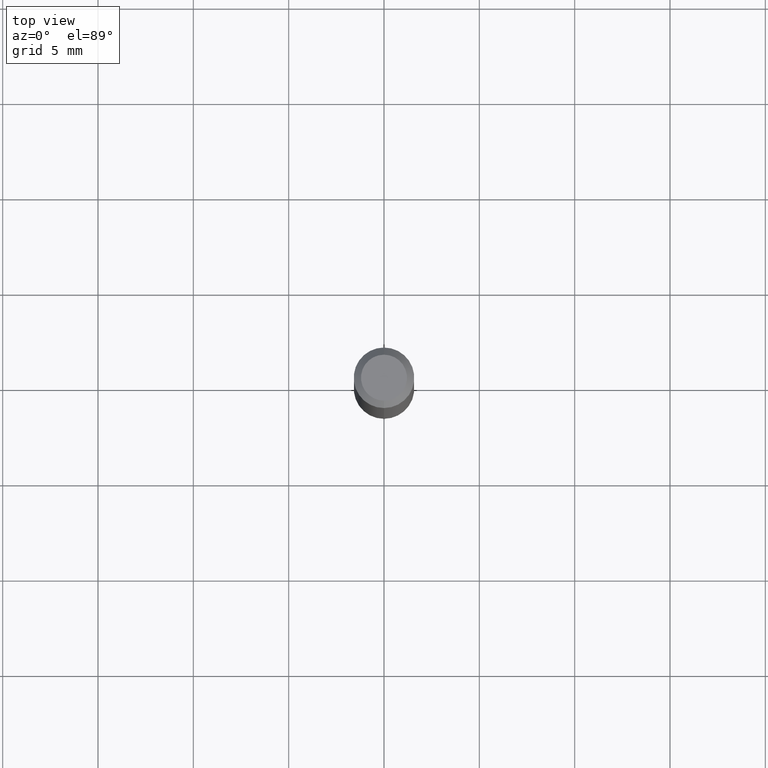
[diagram: clean part render]
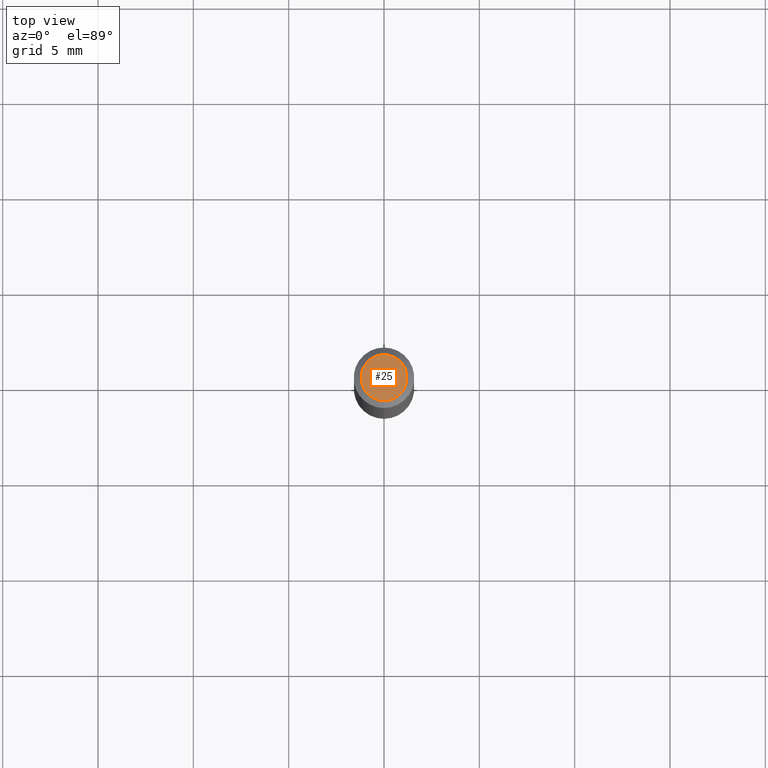
[diagram: same view with one face highlighted and labeled with its STEP entity id]
A machine part, top view. The second image highlights one B-rep face of the part: STEP entity #25.
In plain terms, the highlighted planar face has unit normal (0, -0, -1).
Its self-contained STEP definition (entity closure, byte-faithful):
#25 = ADVANCED_FACE ( 'NONE', ( #317 ), #112, .F. ) ;
#26 = EDGE_CURVE ( 'NONE', #487, #69, #455, .T. ) ;
#69 = VERTEX_POINT ( 'NONE', #399 ) ;
#72 = CARTESIAN_POINT ( 'NONE',  ( 3.840629472727447874E-16, 0.04750000000000000749, 1.073394357713768638E-16 ) ) ;
#83 = DIRECTION ( 'NONE',  ( -6.982962677686265133E-15, -1.000000000000000000, 3.491577159375924592E-15 ) ) ;
#100 = CIRCLE ( 'NONE', #124, 0.04750000000000000749 ) ;
#104 = DIRECTION ( 'NONE',  ( -6.982962677686265133E-15, -1.000000000000000000, 3.491577159375924592E-15 ) ) ;
#112 = PLANE ( 'NONE',  #169 ) ;
#124 = AXIS2_PLACEMENT_3D ( 'NONE', #224, #297, #104 ) ;
#169 = AXIS2_PLACEMENT_3D ( 'NONE', #273, #232, #195 ) ;
#195 = DIRECTION ( 'NONE',  ( 6.982962677686265922E-15, 1.000000000000000000, -3.491577159375925381E-15 ) ) ;
#224 = CARTESIAN_POINT ( 'NONE',  ( -6.680577562598756531E-45, 9.538616975837323053E-31, 2.731893508417333475E-16 ) ) ;
#232 = DIRECTION ( 'NONE',  ( 2.445401895064720671E-29, -3.491577159375925381E-15, -1.000000000000000000 ) ) ;
#237 = AXIS2_PLACEMENT_3D ( 'NONE', #356, #331, #83 ) ;
#273 = CARTESIAN_POINT ( 'NONE',  ( 3.316907271900976589E-16, 0.04750000000000000749, -2.925523964948977298E-17 ) ) ;
#297 = DIRECTION ( 'NONE',  ( -2.445401895064720952E-29, 3.491577159375925381E-15, 1.000000000000000000 ) ) ;
#317 = FACE_OUTER_BOUND ( 'NONE', #417, .T. ) ;
#328 = EDGE_CURVE ( 'NONE', #69, #487, #100, .T. ) ;
#331 = DIRECTION ( 'NONE',  ( -2.445401895064720952E-29, 3.491577159375925381E-15, 1.000000000000000000 ) ) ;
#335 = ORIENTED_EDGE ( 'NONE', *, *, #26, .T. ) ;
#356 = CARTESIAN_POINT ( 'NONE',  ( -6.680577562598756531E-45, 9.538616975837323053E-31, 2.731893508417333475E-16 ) ) ;
#399 = CARTESIAN_POINT ( 'NONE',  ( -3.773273898774340269E-16, -0.04750000000000000749, 4.390392659120897695E-16 ) ) ;
#408 = ORIENTED_EDGE ( 'NONE', *, *, #328, .T. ) ;
#417 = EDGE_LOOP ( 'NONE', ( #335, #408 ) ) ;
#455 = CIRCLE ( 'NONE', #237, 0.04750000000000000749 ) ;
#487 = VERTEX_POINT ( 'NONE', #72 ) ;